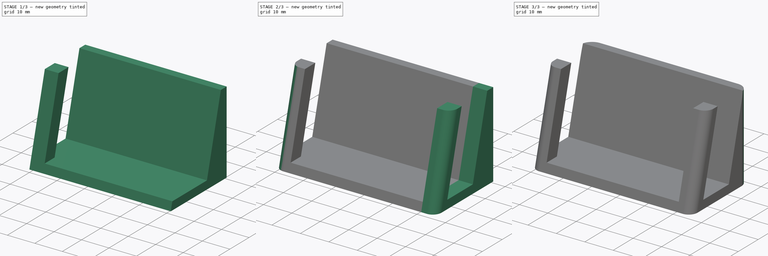
[diagram: build sequence overview — one tinted view per stage of 3, left to right]
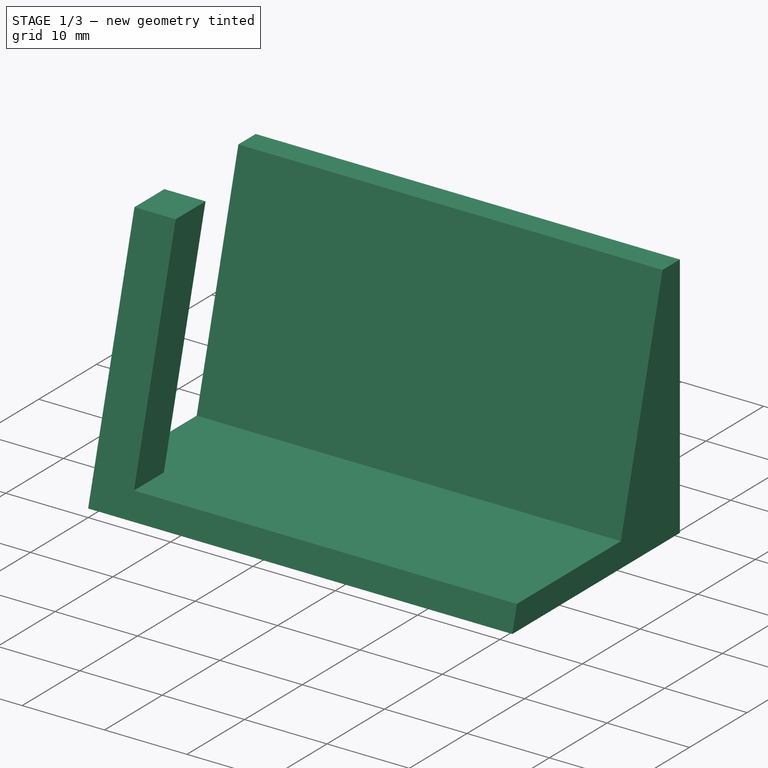
[diagram: stage 1 of 3 — iso view after this stage's code; geometry added in this stage tinted green]
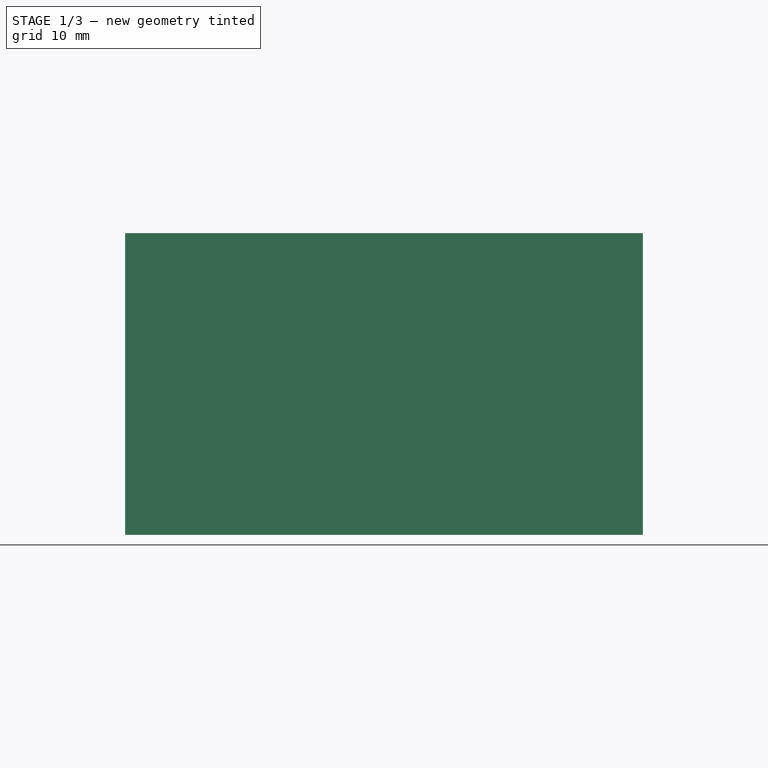
[diagram: stage 1 of 3 — front view after this stage's code; geometry added in this stage tinted green]
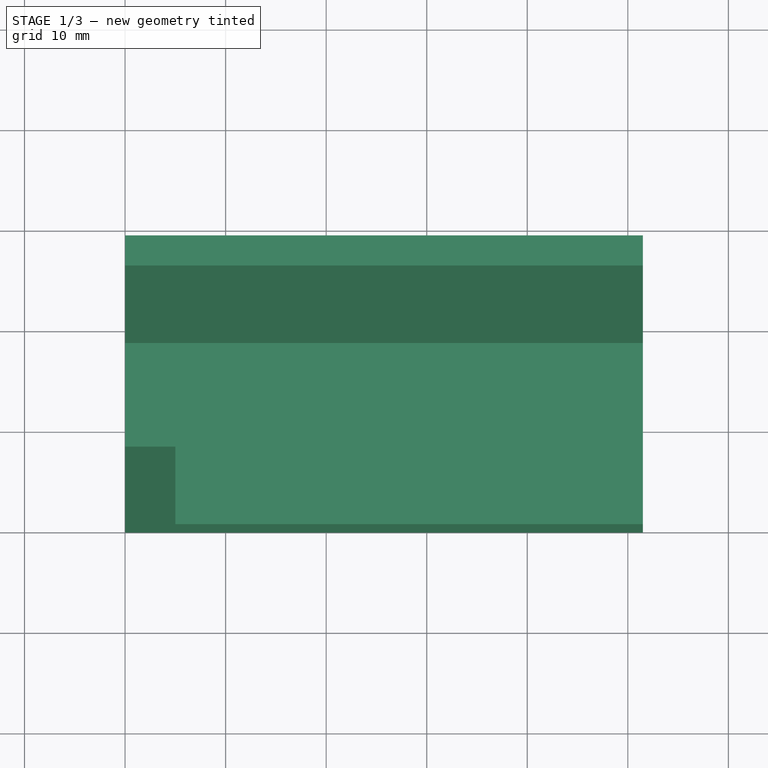
[diagram: stage 1 of 3 — top view after this stage's code; geometry added in this stage tinted green]
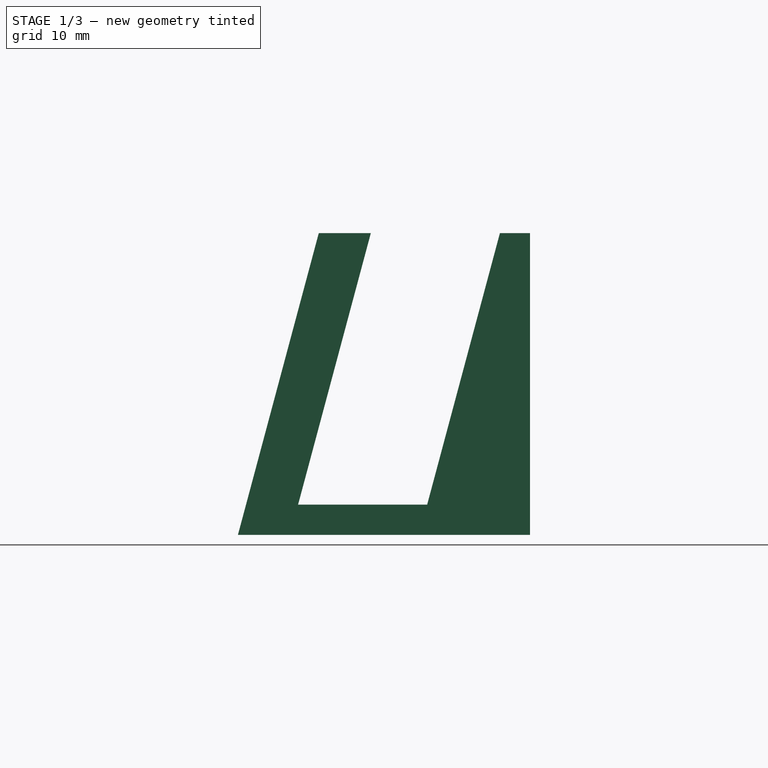
[diagram: stage 1 of 3 — right view after this stage's code; geometry added in this stage tinted green]
FCSTD DOCUMENT  (FreeCAD 1.0R39319 (Git))
Label: stand
License: All rights reserved
LicenseURL: http://en.wikipedia.org/wiki/All_rights_reserved
objects: Sketcher::SketchObject×4, PartDesign::Pad×3, PartDesign::Fillet×2, PartDesign::Hole×1, PartDesign::Body×1, App::Part×1, Measure::MeasureDistance×1, App::DocumentObjectGroup×1
note: 27 computed .brp shape members not serialized (recipe doc carries the construction recipe); baked Part::Feature solids carry a one-line shape summary decoded from their .brp

FEATURE [Sketcher::SketchObject] Sketch
  ArcFitTolerance = 1e-06
  AttachmentSupport = -> [YZ_Plane001]
  FullyConstrained = true
  MakeInternals = false
  MapMode = 5
  Placement = pos=(0,0,0) rot=(0.57735,0.57735,0.57735;2.0944rad)
  sketch-geometry (8):
    g0: LineSegment StartX=0 StartY=0 StartZ=0 EndX=8.03848 EndY=30 EndZ=0
    g1: LineSegment StartX=8.03848 StartY=30 StartZ=0 EndX=13.2149 EndY=30 EndZ=0
    g2: LineSegment StartX=13.2149 StartY=30 StartZ=0 EndX=5.98023 EndY=3 EndZ=0
    g3: LineSegment StartX=5.98023 StartY=3 StartZ=0 EndX=18.8177 EndY=3 EndZ=0
    g4: LineSegment StartX=18.8177 StartY=3 StartZ=0 EndX=26.0523 EndY=30 EndZ=0
    g5: LineSegment StartX=26.0523 StartY=30 StartZ=0 EndX=29.0523 EndY=30 EndZ=0
    g6: LineSegment StartX=29.0523 StartY=30 StartZ=0 EndX=29.0523 EndY=0 EndZ=0
    g7: LineSegment StartX=29.0523 StartY=0 StartZ=0 EndX=0 EndY=0 EndZ=0
  constraints (24):
    c: Coincident(g-1,g0)
    c: Coincident(g0,g1)
    c: Horizontal(g1)
    c: Coincident(g1,g2)
    c: Coincident(g2,g3)
    c: Horizontal(g3)
    c: Coincident(g3,g4)
    c: Coincident(g4,g5)
    c: Horizontal(g5)
    c: Coincident(g5,g6)
    c: PointOnObject(g6,g-1)
    c: Vertical(g6)
    c: Coincident(g6,g7)
    c: Coincident(g7,g0)
    c: Parallel(g0,g2)
    c: Parallel(g2,g4)
    c: Distance(g0,g2) = 5
    c: Distance(g1,g4) = 12.4
    c: Angle(g0,g-2) = 0.261799
    c: DistanceX(g5,g5) = 3
    c: DistanceY(g6,g6) = 30
    c: DistanceY(g0,g1) = 30
    c: DistanceY(g0,g2) = 3
    c: DistanceX(g7,g7) = 29.0523
FEATURE [PartDesign::Pad] Pad
  Direction = (1,0,0)
  Length = 5
  Length2 = 10
  Placement = pos=(0,0,0) rot=(1,1,1;2.0944rad)
  Profile = -> Sketch
  ReferenceAxis = -> Sketch [N_Axis]
  Suppressed = false
  Type = 0
FEATURE [Sketcher::SketchObject] Sketch001
  ArcFitTolerance = 1e-06
  ExternalGeometry = -> [Pad]
  FullyConstrained = false
  MakeInternals = false
  MapMode = 5
  Placement = pos=(0,0,0) rot=(0.57735,0.57735,0.57735;2.0944rad)
  sketch-geometry (14):
    g0: LineSegment [constr] StartX=0 StartY=0 StartZ=0 EndX=8.03848 EndY=30 EndZ=0
    g1: LineSegment [constr] StartX=8.03848 StartY=30 StartZ=0 EndX=13.2149 EndY=30 EndZ=0
    g2: LineSegment [constr] StartX=13.2149 StartY=30 StartZ=0 EndX=5.98023 EndY=3 EndZ=0
    g3: LineSegment [constr] StartX=5.98023 StartY=3 StartZ=0 EndX=18.8177 EndY=3 EndZ=0
    g4: LineSegment [constr] StartX=18.8177 StartY=3 StartZ=0 EndX=26.0523 EndY=30 EndZ=0
    g5: LineSegment [constr] StartX=26.0523 StartY=30 StartZ=0 EndX=29.0523 EndY=30 EndZ=0
    g6: LineSegment [constr] StartX=29.0523 StartY=30 StartZ=0 EndX=29.0523 EndY=0 EndZ=0
    g7: LineSegment [constr] StartX=29.0523 StartY=0 StartZ=0 EndX=0 EndY=0 EndZ=0
    g8: LineSegment StartX=0 StartY=0 StartZ=0 EndX=29.0523 EndY=0 EndZ=0
    g9: LineSegment StartX=29.0523 StartY=0 StartZ=0 EndX=29.0523 EndY=30 EndZ=0
    g10: LineSegment StartX=29.0523 StartY=30 StartZ=0 EndX=26.0523 EndY=30 EndZ=0
    g11: LineSegment StartX=26.0523 StartY=30 StartZ=0 EndX=18.8177 EndY=3 EndZ=0
    g12: LineSegment StartX=18.8177 StartY=3 StartZ=0 EndX=0.803848 EndY=3 EndZ=0
    g13: LineSegment StartX=0.803848 StartY=3 StartZ=0 EndX=1.297e-13 EndY=0 EndZ=0
  constraints (36):
    c: Coincident(g-1,g0)
    c: Coincident(g0,g1)
    c: Horizontal(g1)
    c: Coincident(g1,g2)
    c: Coincident(g2,g3)
    c: Horizontal(g3)
    c: Coincident(g3,g4)
    c: Coincident(g4,g5)
    c: Horizontal(g5)
    c: Coincident(g5,g6)
    c: PointOnObject(g6,g-1)
    c: Vertical(g6)
    c: Coincident(g6,g7)
    c: Coincident(g7,g0)
    c: Parallel(g0,g2)
    c: Parallel(g2,g4)
    c: Distance(g0,g2) = 5
    c: Distance(g1,g4) = 12.4
    c: Angle(g0,g-2) = 0.261799
    c: DistanceX(g5,g5) = 3
    c: DistanceY(g6,g6) = 30
    c: DistanceY(g0,g1) = 30
    c: DistanceY(g0,g2) = 3
    c: Coincident(g0,g8)
    c: Coincident(g8,g6)
    c: Coincident(g8,g9)
    c: Coincident(g9,g5)
    c: Coincident(g9,g10)
    c: Coincident(g10,g4)
    c: Coincident(g10,g11)
    c: Coincident(g11,g3)
    c: Coincident(g11,g12)
    c: PointOnObject(g12,g0)
    c: Horizontal(g12)
    c: DistanceX(g8,g8) = 29.0523
    c: Angle(g13,g-2) = 0.261799
FEATURE [PartDesign::Pad] Pad001
  BaseFeature = -> Pad
  Direction = (1,1e-16,-1e-16)
  Length = 51.5
  Length2 = 10
  Placement = pos=(0,0,0) rot=(1,1,1;2.0944rad)
  Profile = -> Sketch001
  ReferenceAxis = -> Sketch001 [N_Axis]
  Suppressed = false
  Type = 0
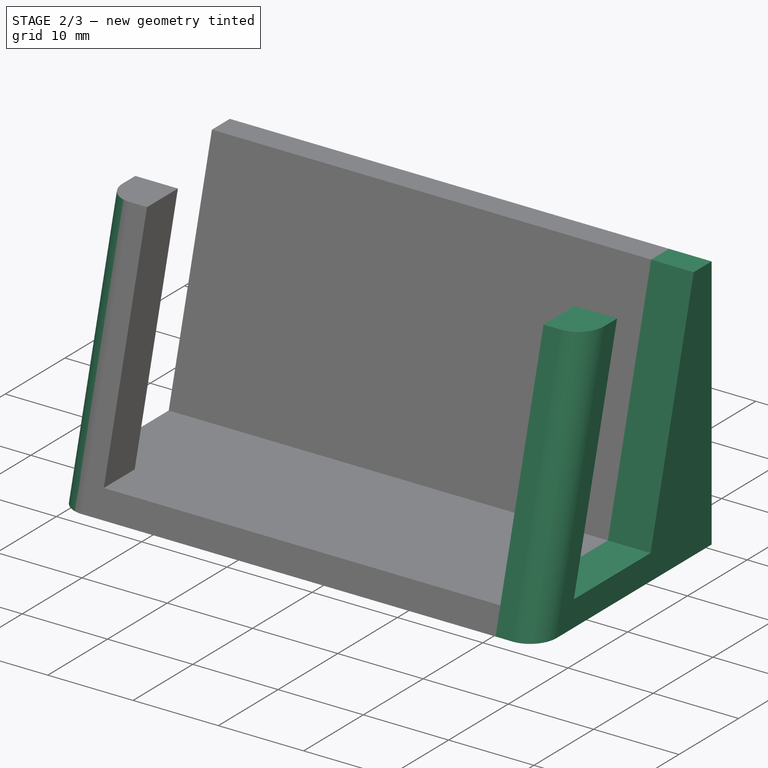
[diagram: stage 2 of 3 — iso view after this stage's code; geometry added in this stage tinted green]
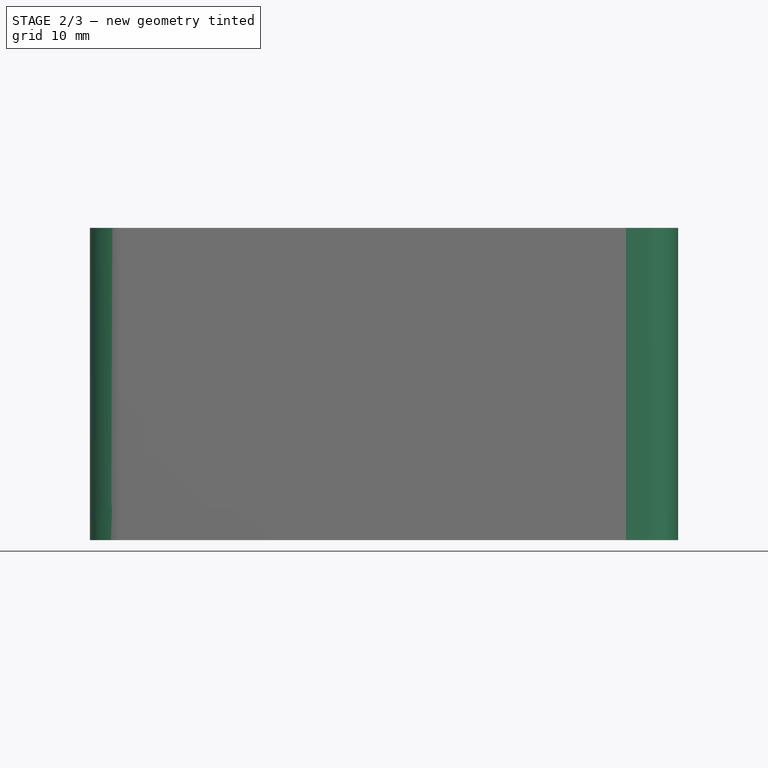
[diagram: stage 2 of 3 — front view after this stage's code; geometry added in this stage tinted green]
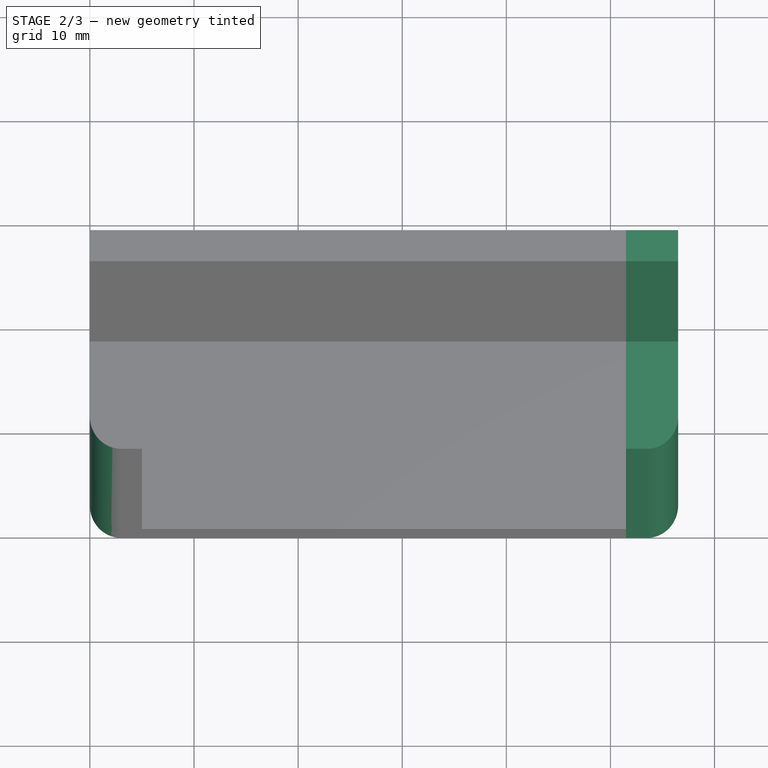
[diagram: stage 2 of 3 — top view after this stage's code; geometry added in this stage tinted green]
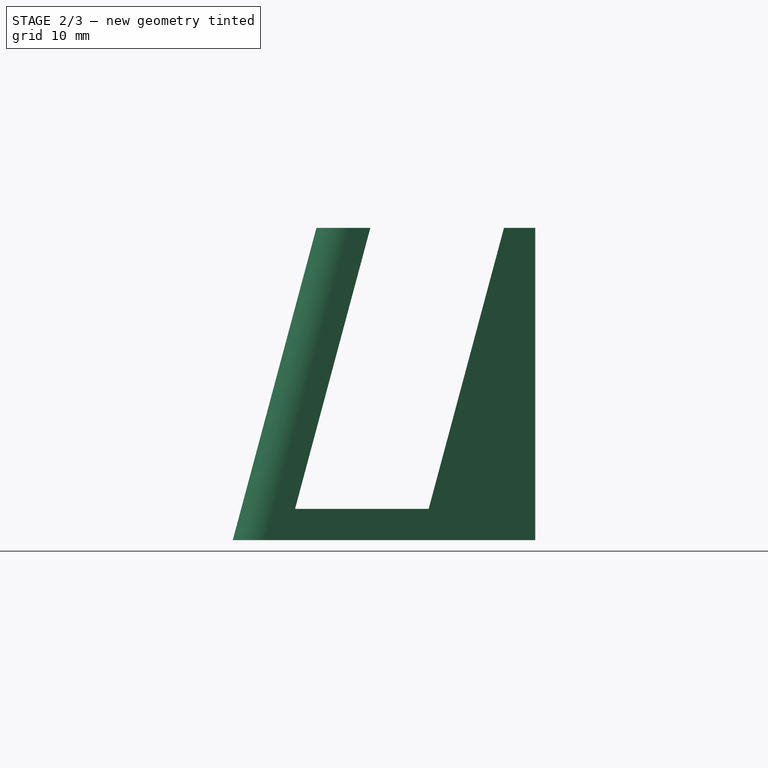
[diagram: stage 2 of 3 — right view after this stage's code; geometry added in this stage tinted green]
FEATURE [Sketcher::SketchObject] Sketch002
  ArcFitTolerance = 1e-06
  AttachmentSupport = -> [Pad001]
  FullyConstrained = true
  MakeInternals = false
  MapMode = 5
  Placement = pos=(51.5,1.14e-14,5.7e-15) rot=(0.57735,0.57735,0.57735;2.0944rad)
  sketch-geometry (8):
    g0: LineSegment StartX=0 StartY=0 StartZ=0 EndX=8.03848 EndY=30 EndZ=0
    g1: LineSegment StartX=8.03848 StartY=30 StartZ=0 EndX=13.2149 EndY=30 EndZ=0
    g2: LineSegment StartX=13.2149 StartY=30 StartZ=0 EndX=5.98023 EndY=3 EndZ=0
    g3: LineSegment StartX=5.98023 StartY=3 StartZ=0 EndX=18.8177 EndY=3 EndZ=0
    g4: LineSegment StartX=18.8177 StartY=3 StartZ=0 EndX=26.0523 EndY=30 EndZ=0
    g5: LineSegment StartX=26.0523 StartY=30 StartZ=0 EndX=29.0523 EndY=30 EndZ=0
    g6: LineSegment StartX=29.0523 StartY=30 StartZ=0 EndX=29.0523 EndY=0 EndZ=0
    g7: LineSegment StartX=29.0523 StartY=0 StartZ=0 EndX=0 EndY=0 EndZ=0
  constraints (23):
    c: Coincident(g-1,g0)
    c: Coincident(g0,g1)
    c: Horizontal(g1)
    c: Coincident(g1,g2)
    c: Coincident(g2,g3)
    c: Horizontal(g3)
    c: Coincident(g3,g4)
    c: Coincident(g4,g5)
    c: Horizontal(g5)
    c: Coincident(g5,g6)
    c: PointOnObject(g6,g-1)
    c: Vertical(g6)
    c: Coincident(g6,g7)
    c: Coincident(g7,g0)
    c: Parallel(g0,g2)
    c: Parallel(g2,g4)
    c: Distance(g0,g2) = 5
    c: Distance(g1,g4) = 12.4
    c: Angle(g0,g-2) = 0.261799
    c: DistanceX(g5,g5) = 3
    c: DistanceY(g6,g6) = 30
    c: DistanceY(g0,g1) = 30
    c: DistanceY(g0,g2) = 3
FEATURE [PartDesign::Pad] Pad002
  BaseFeature = -> Pad001
  Direction = (1,0,0)
  Length = 5
  Length2 = 10
  Placement = pos=(0,0,0) rot=(1,1,1;2.0944rad)
  Profile = -> Sketch002
  ReferenceAxis = -> Sketch002 [N_Axis]
  Suppressed = false
  Type = 0
FEATURE [PartDesign::Fillet] Fillet
  Base = -> Pad002 [Edge11,Edge1,Edge38]
  BaseFeature = -> Pad002
  Placement = pos=(0,0,0) rot=(1,1,1;2.0944rad)
  Radius = 3
  SupportTransform = false
  Suppressed = false
  UseAllEdges = false
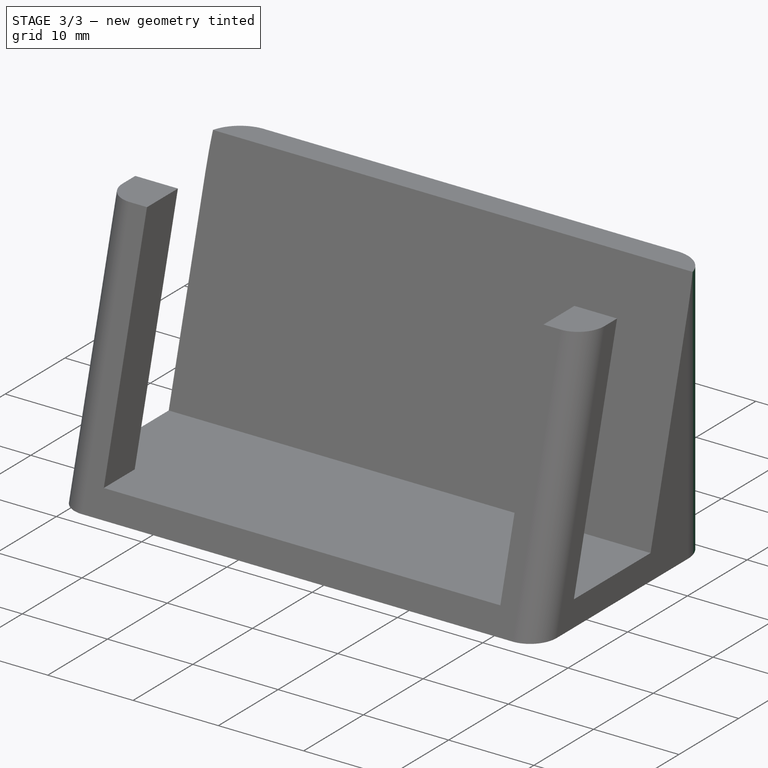
[diagram: stage 3 of 3 — iso view after this stage's code; geometry added in this stage tinted green]
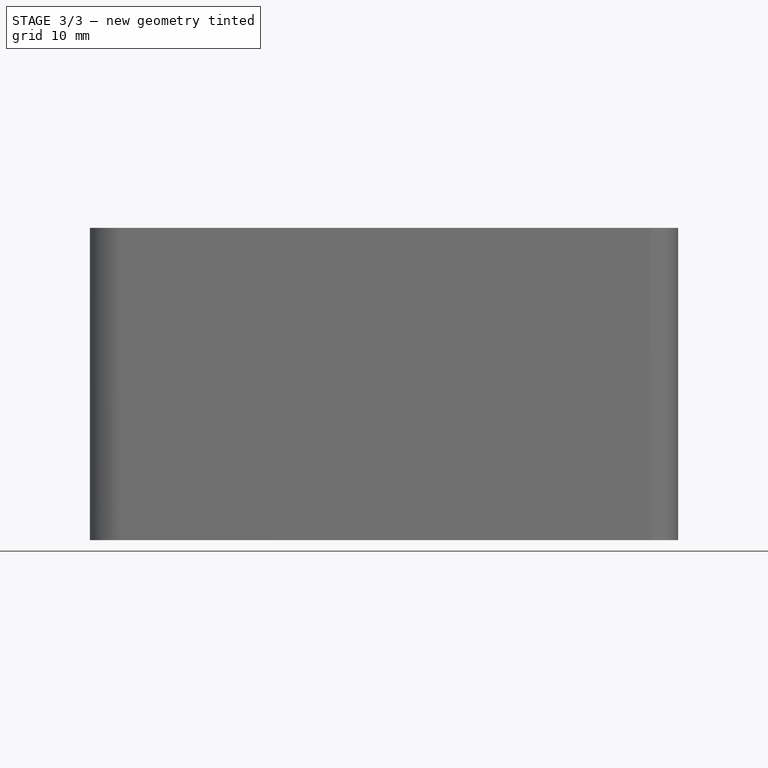
[diagram: stage 3 of 3 — front view after this stage's code; geometry added in this stage tinted green]
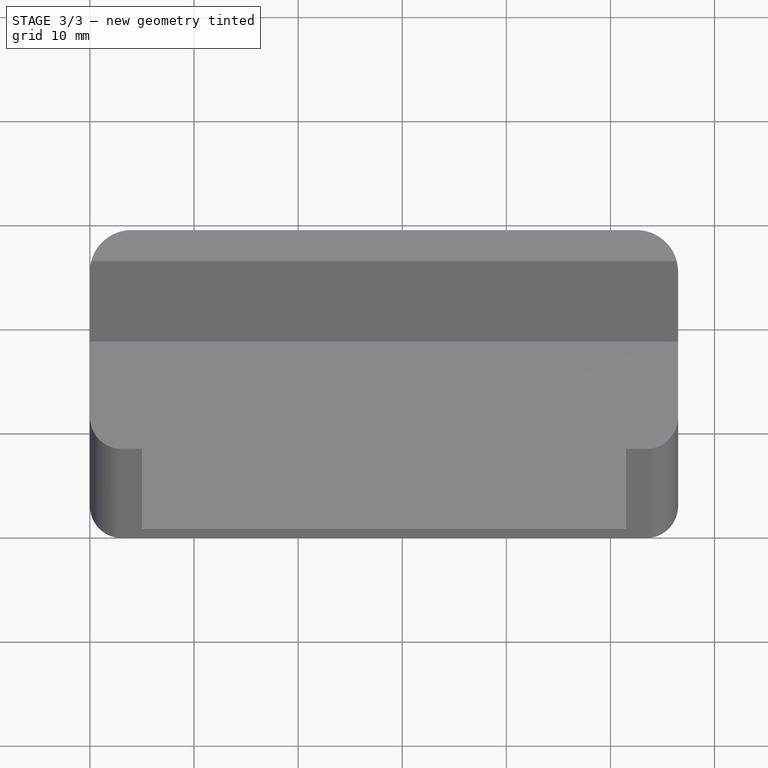
[diagram: stage 3 of 3 — top view after this stage's code; geometry added in this stage tinted green]
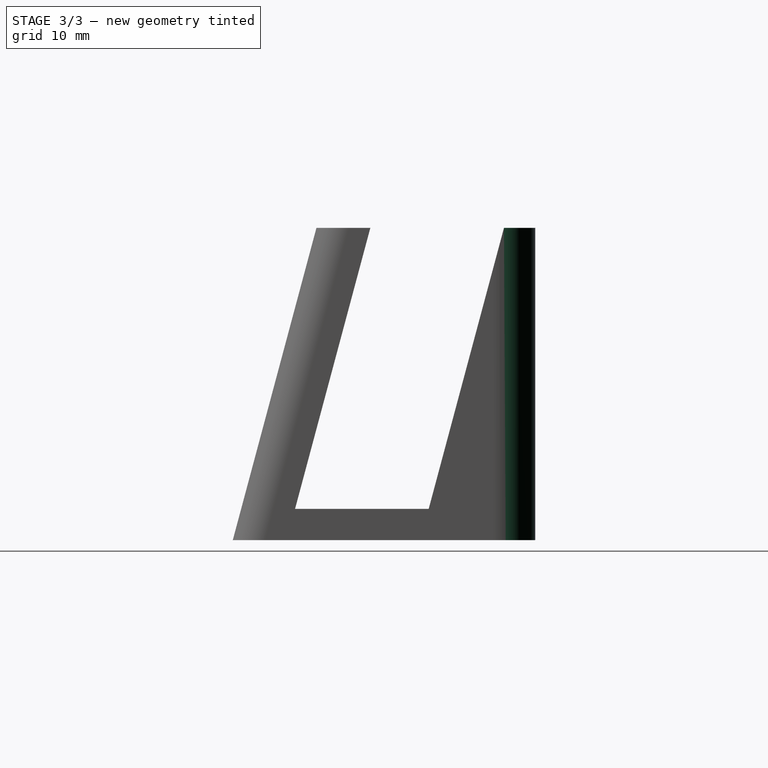
[diagram: stage 3 of 3 — right view after this stage's code; geometry added in this stage tinted green]
FEATURE [Sketcher::SketchObject] Sketch003
  ArcFitTolerance = 1e-06
  AttachmentSupport = -> [Pad002]
  ExternalGeometry = -> [Fillet]
  FullyConstrained = false
  MakeInternals = false
  MapMode = 5
  Placement = pos=(0,0,0) rot=(0.707107,0.707107,0;3.14159rad)
  sketch-geometry (4):
    g0: Circle CenterX=3 CenterY=53.5 CenterZ=0 NormalX=0 NormalY=0 NormalZ=1 AngleXU=0 Radius=1.075
    g1: Circle CenterX=26.0523 CenterY=53.5 CenterZ=0 NormalX=0 NormalY=0 NormalZ=1 AngleXU=0 Radius=1.00656
    g2: Circle CenterX=3 CenterY=3 CenterZ=0 NormalX=0 NormalY=0 NormalZ=1 AngleXU=0 Radius=1.01439
    g3: Circle CenterX=26.0523 CenterY=3 CenterZ=0 NormalX=0 NormalY=0 NormalZ=1 AngleXU=0 Radius=1.13237
  constraints (8):
    c: DistanceX(g-7,g0) = 3
    c: DistanceY(g0,g-3) = 3
    c: DistanceY(g1,g-3) = 3
    c: DistanceY(g-6,g3) = 3
    c: DistanceY(g-6,g2) = 3
    c: DistanceX(g-7,g2) = 3
    c: DistanceX(g3,g-8) = 3
    c: DistanceX(g1,g-8) = 3
FEATURE [PartDesign::Fillet] Fillet001
  Base = -> Fillet [Edge31,Edge68]
  BaseFeature = -> Fillet
  Placement = pos=(0,0,0) rot=(1,1,1;2.0944rad)
  Radius = 4
  SupportTransform = false
  Suppressed = false
  UseAllEdges = false
FEATURE [PartDesign::Hole] Hole
  BaseFeature = -> Fillet001
  CustomThreadClearance = 0
  Depth = 3
  DepthType = 0
  Diameter = 1.6
  DrillForDepth = false
  DrillPoint = 1
  DrillPointAngle = 118
  HoleCutCountersinkAngle = 90
  HoleCutCustomValues = false
  HoleCutDepth = 0
  HoleCutDiameter = 6.1
  HoleCutType = 0
  ModelThread = false
  Placement = pos=(0,0,0) rot=(1,1,1;2.0944rad)
  Profile = -> Sketch003
  Suppressed = false
  Tapered = false
  TaperedAngle = 90
  ThreadClass = 0
  ThreadDepth = 3
  ThreadDepthType = 0
  ThreadDirection = 0
  ThreadFit = 0
  ThreadSize = 6
  ThreadType = 1
  Threaded = true
  UseCustomThreadClearance = false
FEATURE [PartDesign::Body] Body
  AllowCompound = false
  Group = -> [Sketch,Pad,Sketch001,Pad001,Sketch002,Pad002,Sketch003,Fillet,Fillet001,Hole]
  Origin = -> Origin001
  Tip = -> Hole
FEATURE [App::Part] Part
  Group = -> [Body]
  Origin = -> Origin
FEATURE [Measure::MeasureDistance] Distance  label="Distance: 46.50 mm"
  Distance = 46.5
  DistanceX = 46.5
  DistanceY = 3.628e-13
  DistanceZ = 9.73e-14
  Element1 = -> Part [Body.Pad002.Face22]
  Element2 = -> Part [Body.Pad002.Face12]
  Position1 = (51.5,0.803848,3)
  Position2 = (5,0.803848,3)
FEATURE [App::DocumentObjectGroup] Measurements
  Group = -> [Distance]
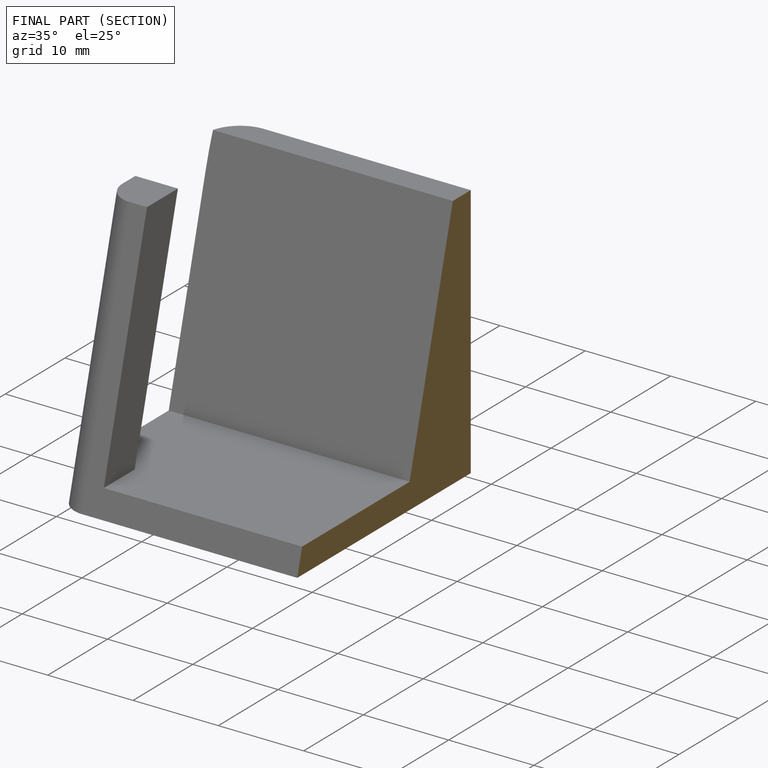
[diagram: finished part — half-section view (interior)]
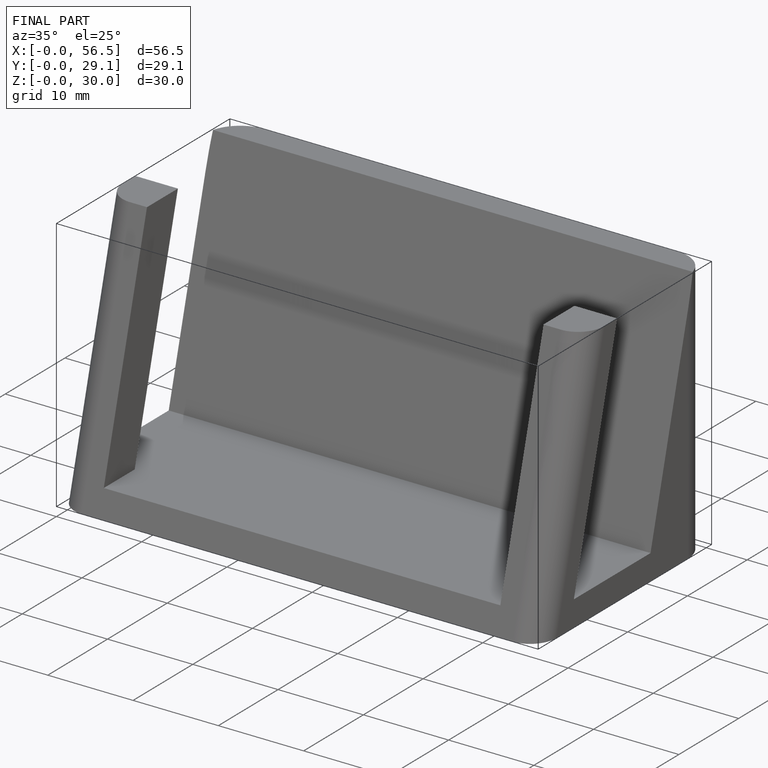
[diagram: finished part — iso view with bounding-box wireframe]
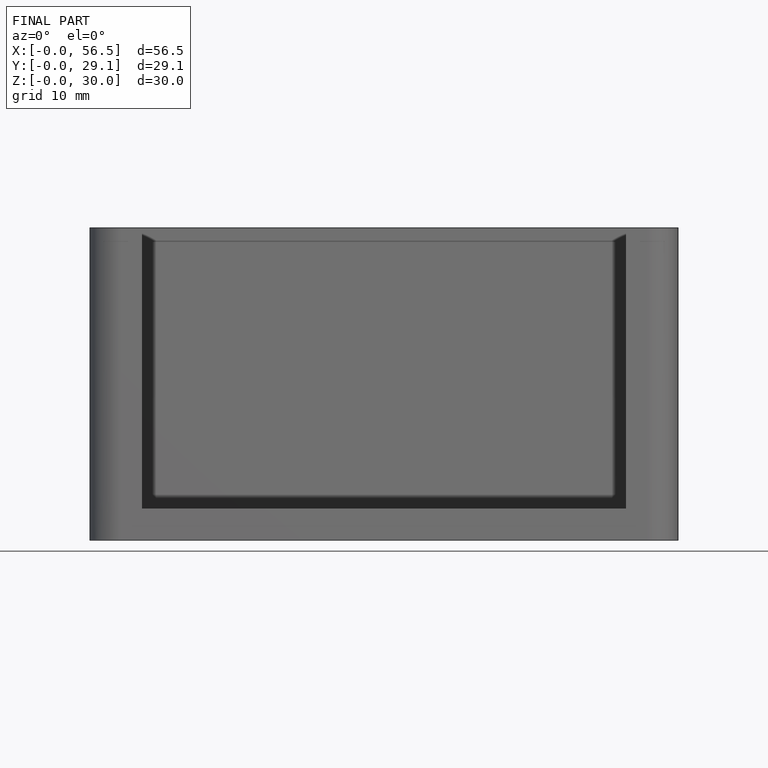
[diagram: finished part — front view with bounding-box wireframe]
